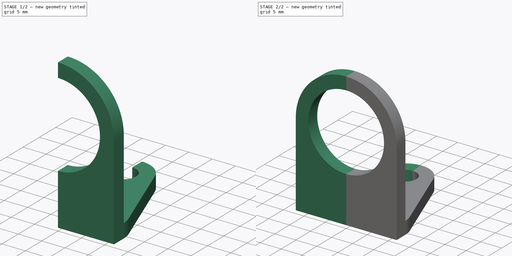
[diagram: build sequence overview — one tinted view per stage of 2, left to right]
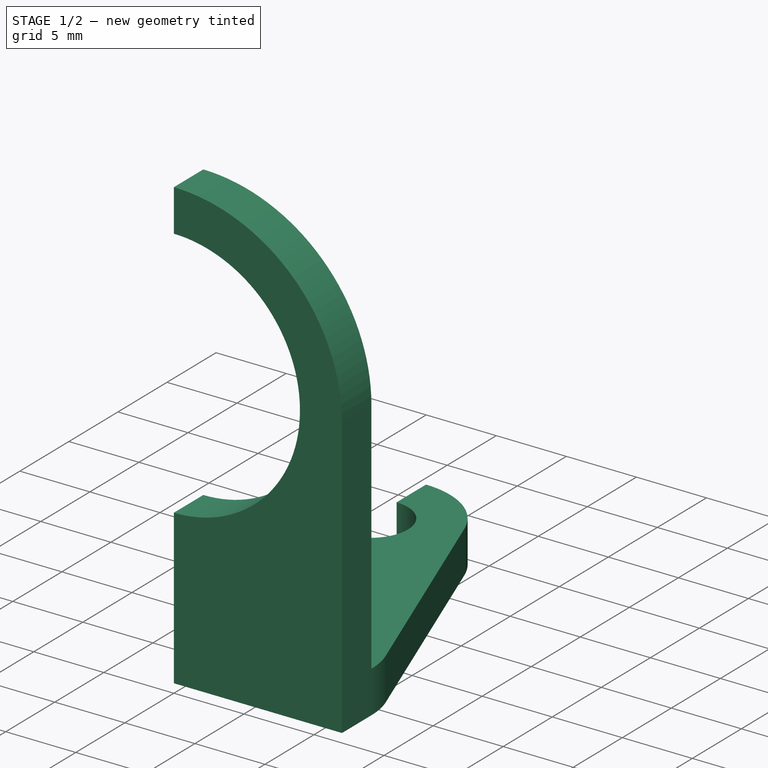
[diagram: stage 1 of 2 — iso view after this stage's code; geometry added in this stage tinted green]
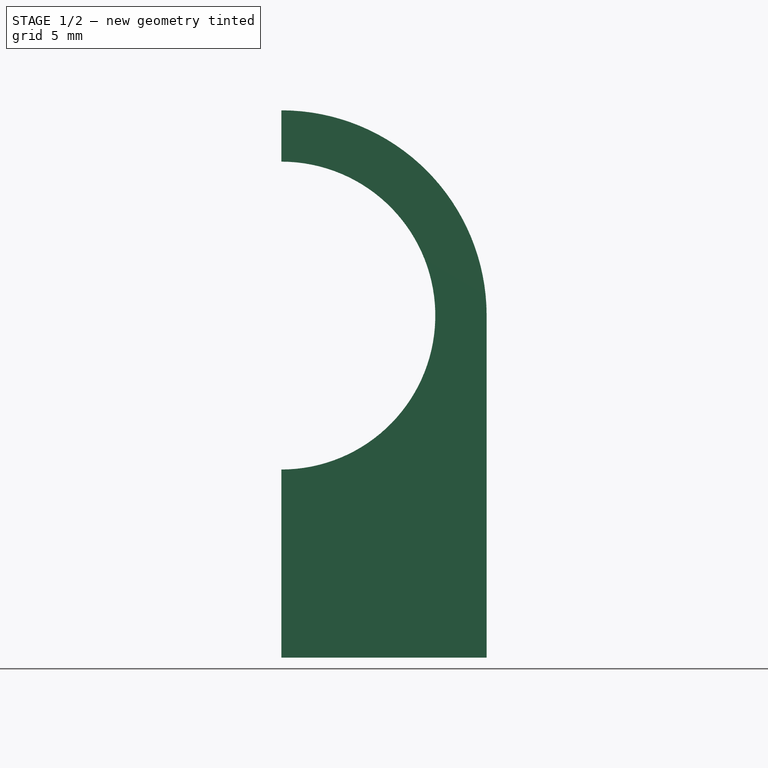
[diagram: stage 1 of 2 — front view after this stage's code; geometry added in this stage tinted green]
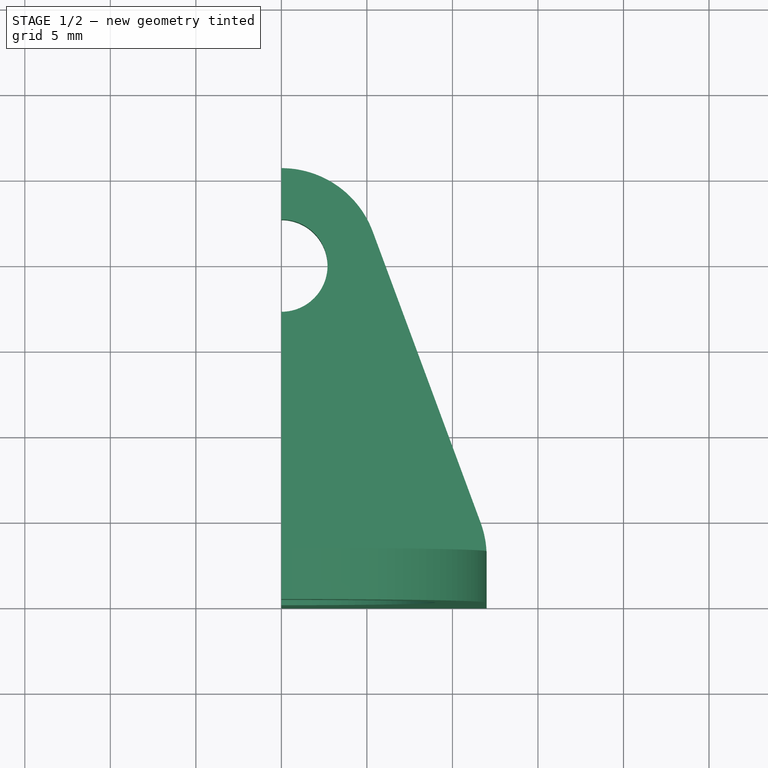
[diagram: stage 1 of 2 — top view after this stage's code; geometry added in this stage tinted green]
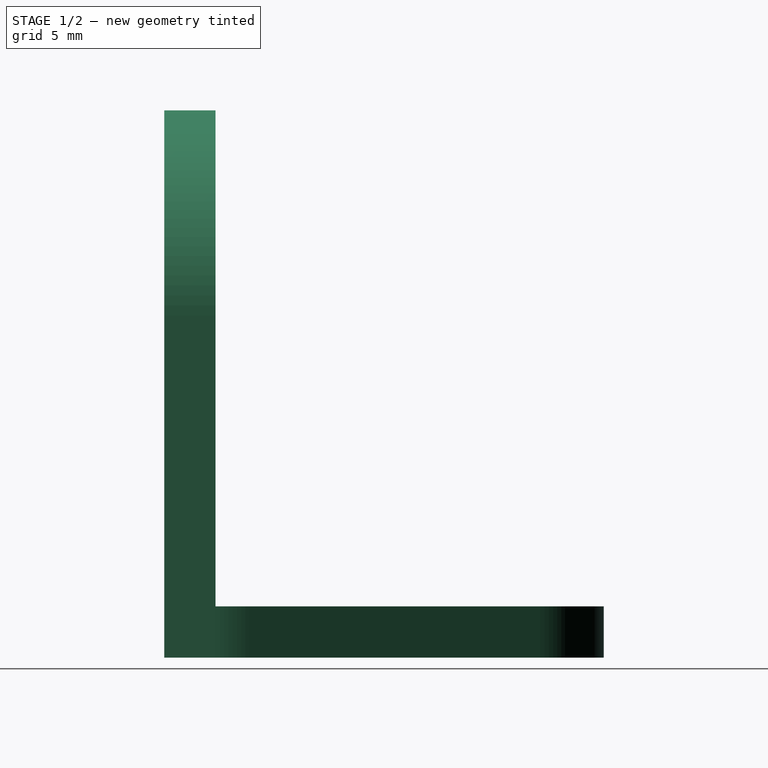
[diagram: stage 1 of 2 — right view after this stage's code; geometry added in this stage tinted green]
FCSTD DOCUMENT  (FreeCAD 0.19R24291 (Git))
Label: УголокБезГайки
License: All rights reserved
LicenseURL: http://en.wikipedia.org/wiki/All_rights_reserved
objects: Sketcher::SketchObject×2, PartDesign::Pad×2, Spreadsheet::Sheet×1, PartDesign::Mirrored×1, PartDesign::Body×1
note: 8 computed .brp shape members not serialized (recipe doc carries the construction recipe); baked Part::Feature solids carry a one-line shape summary decoded from their .brp

FEATURE [Sketcher::SketchObject] Sketch
  FullyConstrained = true
  MapMode = 5
  Support = -> [XY_Plane]
  expr: Constraints[22] = Spreadsheet.width
  expr: Constraints[21] = Spreadsheet.d1 + Spreadsheet.ring_width * 2
  expr: Constraints[23] = Spreadsheet.thickness
  expr: Constraints[19] = Spreadsheet.d1
  expr: Constraints[20] = Spreadsheet.l1
  sketch-geometry (8):
    g0: ArcOfCircle CenterX=0 CenterY=20 CenterZ=0 NormalX=0 NormalY=0 NormalZ=1 AngleXU=0 Radius=2.7 StartAngle=4.71239 EndAngle=7.85398
    g1: ArcOfCircle CenterX=0 CenterY=20 CenterZ=0 NormalX=0 NormalY=0 NormalZ=1 AngleXU=0 Radius=5.7 StartAngle=0.354901 EndAngle=1.5708
    g2: LineSegment StartX=0 StartY=0 StartZ=0 EndX=12 EndY=0 EndZ=0
    g3: LineSegment StartX=12 StartY=0 StartZ=0 EndX=12 EndY=3 EndZ=0
    g4: LineSegment StartX=0 StartY=25.7 StartZ=0 EndX=0 EndY=22.7 EndZ=0
    g5: LineSegment StartX=0 StartY=17.3 StartZ=0 EndX=0 EndY=0 EndZ=0
    g6: ArcOfCircle CenterX=6.3 CenterY=3 CenterZ=0 NormalX=0 NormalY=0 NormalZ=1 AngleXU=0 Radius=5.7 StartAngle=6.28319 EndAngle=6.63809
    g7: LineSegment StartX=11.6448 StartY=4.98074 StartZ=0 EndX=5.34478 EndY=21.9807 EndZ=0
  constraints (25):
    c: PointOnObject(g0,g-2)
    c: PointOnObject(g0,g-2)
    c: PointOnObject(g0,g-2)
    c: Coincident(g1,g0)
    c: PointOnObject(g1,g-2)
    c: Coincident(g2,g-1)
    c: PointOnObject(g2,g-1)
    c: Coincident(g3,g2)
    c: Vertical(g3)
    c: Coincident(g4,g1)
    c: Coincident(g4,g0)
    c: Coincident(g5,g0)
    c: Coincident(g5,g2)
    c: Coincident(g6,g3)
    c: Coincident(g7,g1)
    c: Coincident(g7,g6)
    c: Tangent(g3,g6)
    c: Tangent(g6,g7)
    c: Tangent(g7,g1)
    c: Diameter(g0) = 5.4
    c: Distance(g2,g0) = 20
    c: Diameter(g1) = 11.4
    c: Distance(g2) = 12
    c: Distance(g3) = 3
    c: Equal(g6,g1)
FEATURE [Sketcher::SketchObject] Sketch001
  FullyConstrained = true
  MapMode = 5
  Placement = pos=(0,0,0) rot=(1,0,0;1.5708rad)
  Support = -> [XZ_Plane]
  expr: Constraints[18] = Spreadsheet.width
  expr: Constraints[17] = Spreadsheet.l2
  expr: Constraints[16] = Spreadsheet.d2 + Spreadsheet.ring_width * 2
  expr: Constraints[19] = Spreadsheet.thickness
  expr: Constraints[15] = Spreadsheet.d2
  sketch-geometry (7):
    g0: ArcOfCircle CenterX=0 CenterY=20 CenterZ=0 NormalX=0 NormalY=0 NormalZ=1 AngleXU=0 Radius=9 StartAngle=4.71239 EndAngle=7.85398
    g1: ArcOfCircle CenterX=0 CenterY=20 CenterZ=0 NormalX=0 NormalY=0 NormalZ=1 AngleXU=0 Radius=12 StartAngle=3.77182e-06 EndAngle=1.5708
    g2: LineSegment StartX=12 StartY=3 StartZ=0 EndX=12 EndY=0 EndZ=0
    g3: LineSegment StartX=12 StartY=0 StartZ=0 EndX=0 EndY=0 EndZ=0
    g4: LineSegment StartX=0 StartY=0 StartZ=0 EndX=-1.7e-15 EndY=11 EndZ=0
    g5: LineSegment StartX=2.8e-15 StartY=29 StartZ=0 EndX=7e-16 EndY=32 EndZ=0
    g6: LineSegment StartX=12 StartY=20 StartZ=0 EndX=12 EndY=3 EndZ=0
  constraints (21):
    c: PointOnObject(g0,g-2)
    c: PointOnObject(g0,g-2)
    c: PointOnObject(g0,g-2)
    c: Coincident(g1,g0)
    c: PointOnObject(g1,g-2)
    c: PointOnObject(g2,g-1)
    c: Vertical(g2)
    c: Coincident(g3,g2)
    c: Coincident(g3,g-1)
    c: Coincident(g4,g3)
    c: Coincident(g4,g0)
    c: Coincident(g5,g0)
    c: Coincident(g5,g1)
    c: Coincident(g6,g1)
    c: Tangent(g6,g1)
    c: Diameter(g0) = 18
    c: Diameter(g1) = 24
    c: Distance(g3,g0) = 20
    c: Distance(g3) = 12
    c: Distance(g2) = 3
    c: Coincident(g6,g2)
FEATURE [Spreadsheet::Sheet] Spreadsheet
  cells = A2(d1)=5.4; B2(width)==(d1 > d2 ? d1 : d2) / 2 + ring_width; C2(thickness)=3; D2(l1)=20; A3(d2)=18; B3(ring_width)=3; D3(l2)=20
FEATURE [PartDesign::Pad] Pad
  Direction = (1,1,1)
  Length = 3
  Length2 = 100
  Profile = -> Sketch
  Type = 0
  expr: Length = Spreadsheet.thickness
FEATURE [PartDesign::Pad] Pad001
  BaseFeature = -> Pad
  Direction = (1,1,1)
  Length = 3
  Length2 = 100
  Profile = -> Sketch001
  Reversed = true
  Type = 0
  expr: Length = Spreadsheet.thickness
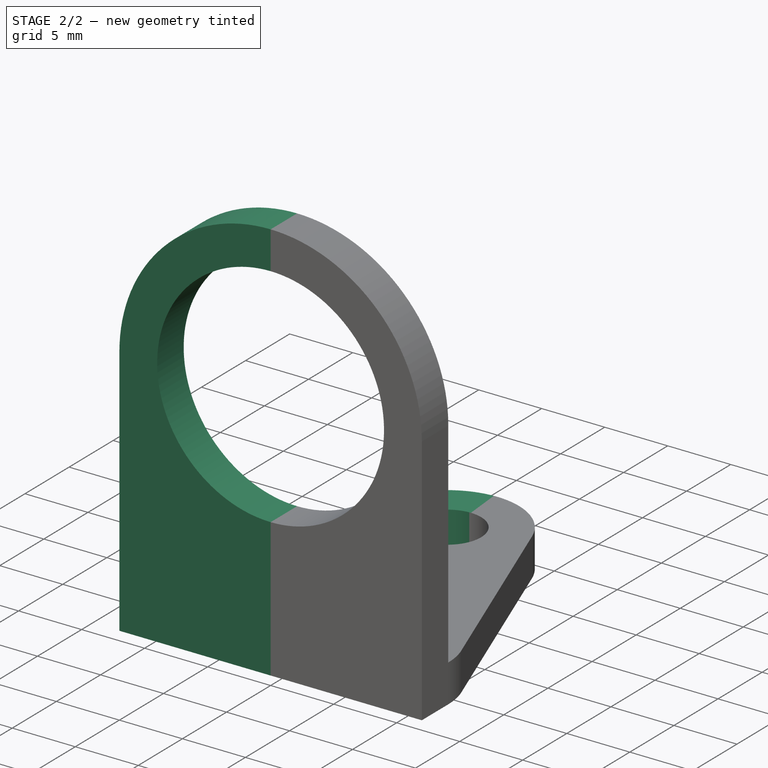
[diagram: stage 2 of 2 — iso view after this stage's code; geometry added in this stage tinted green]
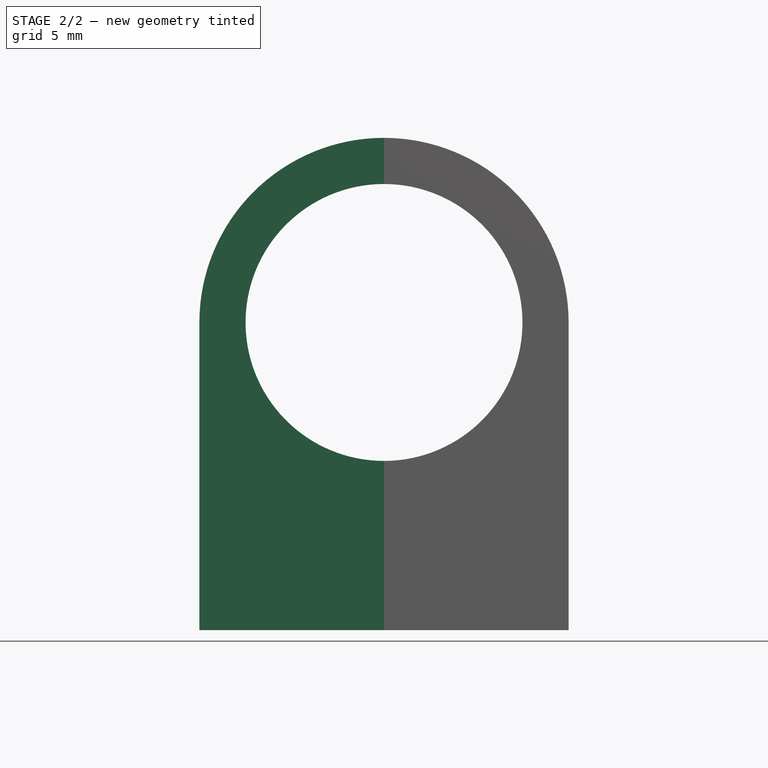
[diagram: stage 2 of 2 — front view after this stage's code; geometry added in this stage tinted green]
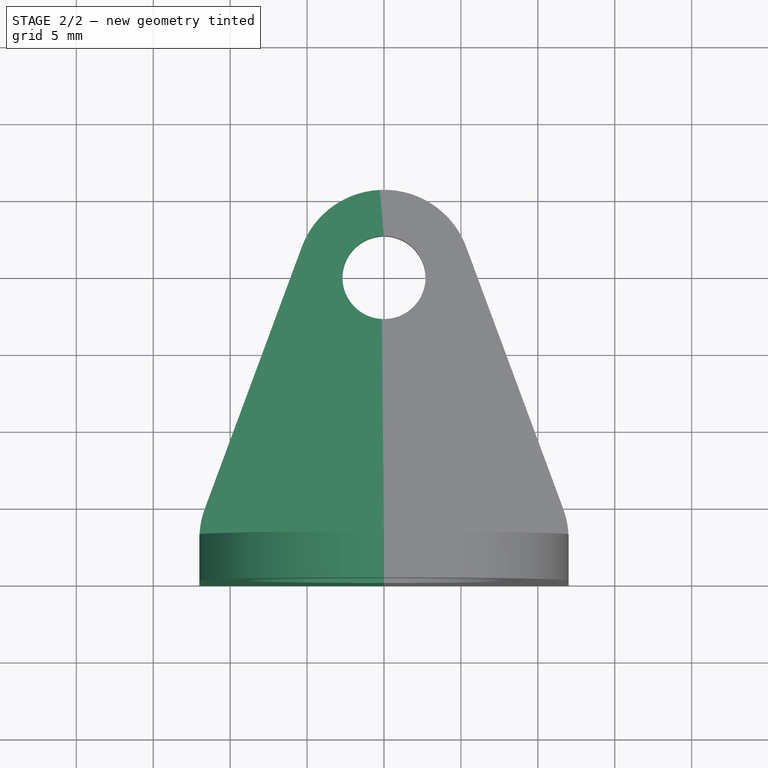
[diagram: stage 2 of 2 — top view after this stage's code; geometry added in this stage tinted green]
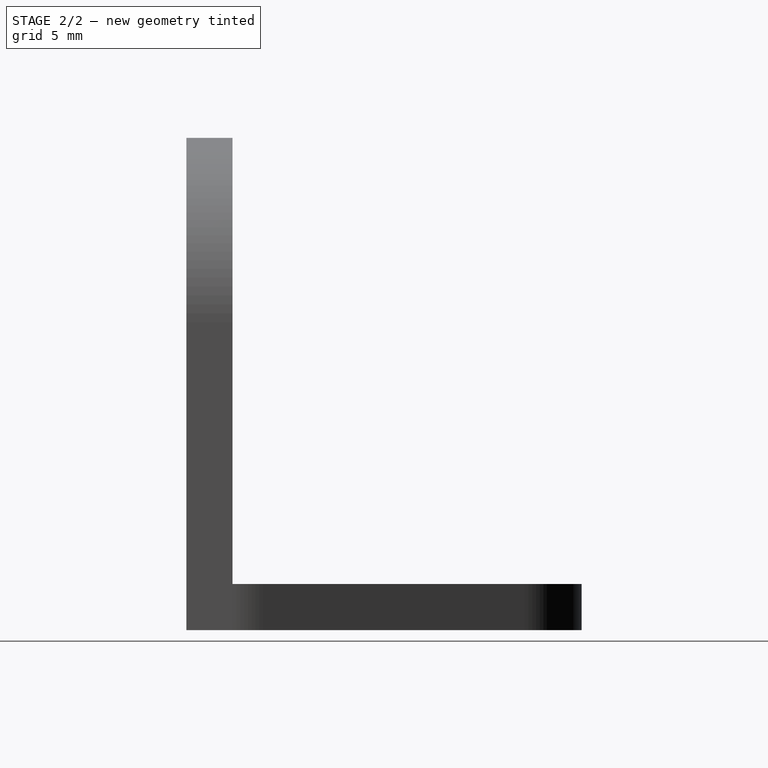
[diagram: stage 2 of 2 — right view after this stage's code; geometry added in this stage tinted green]
FEATURE [PartDesign::Mirrored] Mirrored
  BaseFeature = -> Pad001
  MirrorPlane = -> Sketch [V_Axis]
  Originals = -> [Pad,Pad001]
FEATURE [PartDesign::Body] Body
  Group = -> [Sketch,Sketch001,Pad,Pad001,Mirrored]
  Origin = -> Origin
  Tip = -> Mirrored
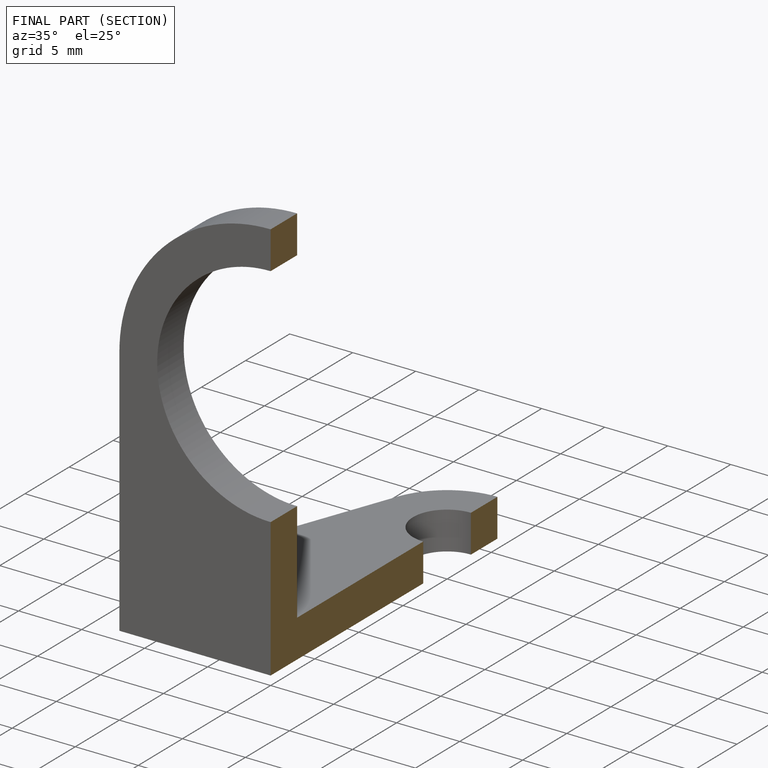
[diagram: finished part — half-section view (interior)]
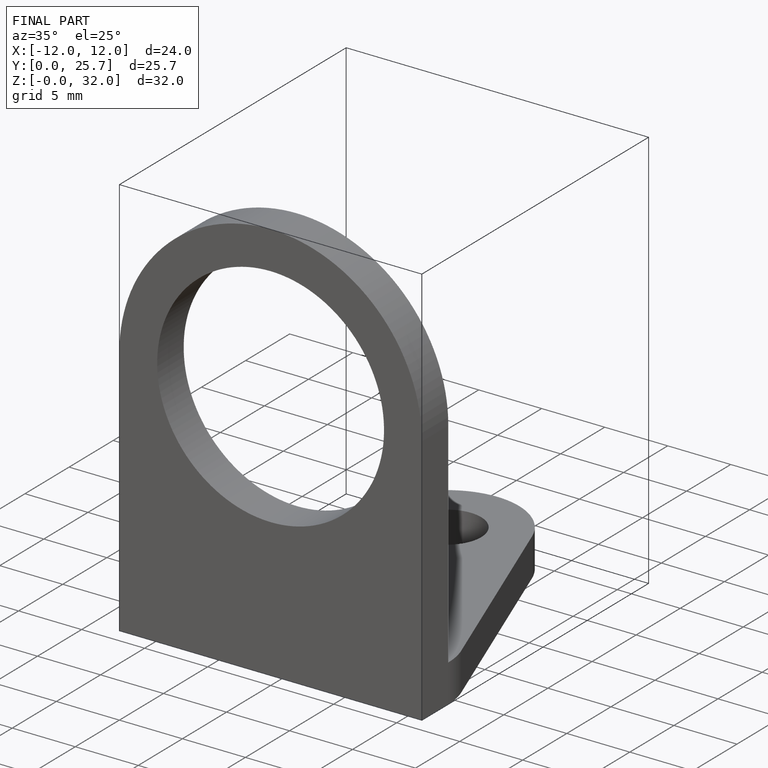
[diagram: finished part — iso view with bounding-box wireframe]
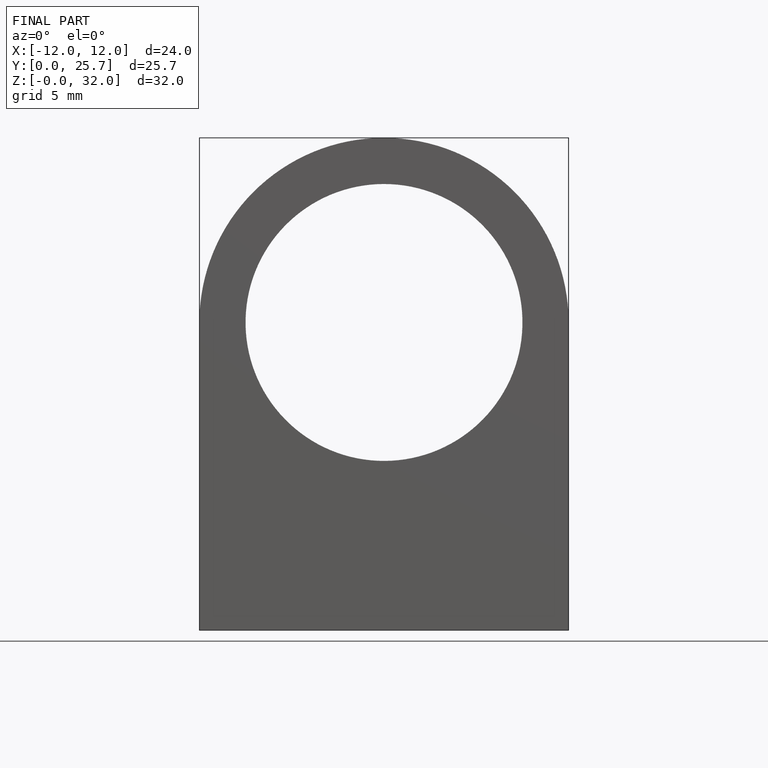
[diagram: finished part — front view with bounding-box wireframe]
